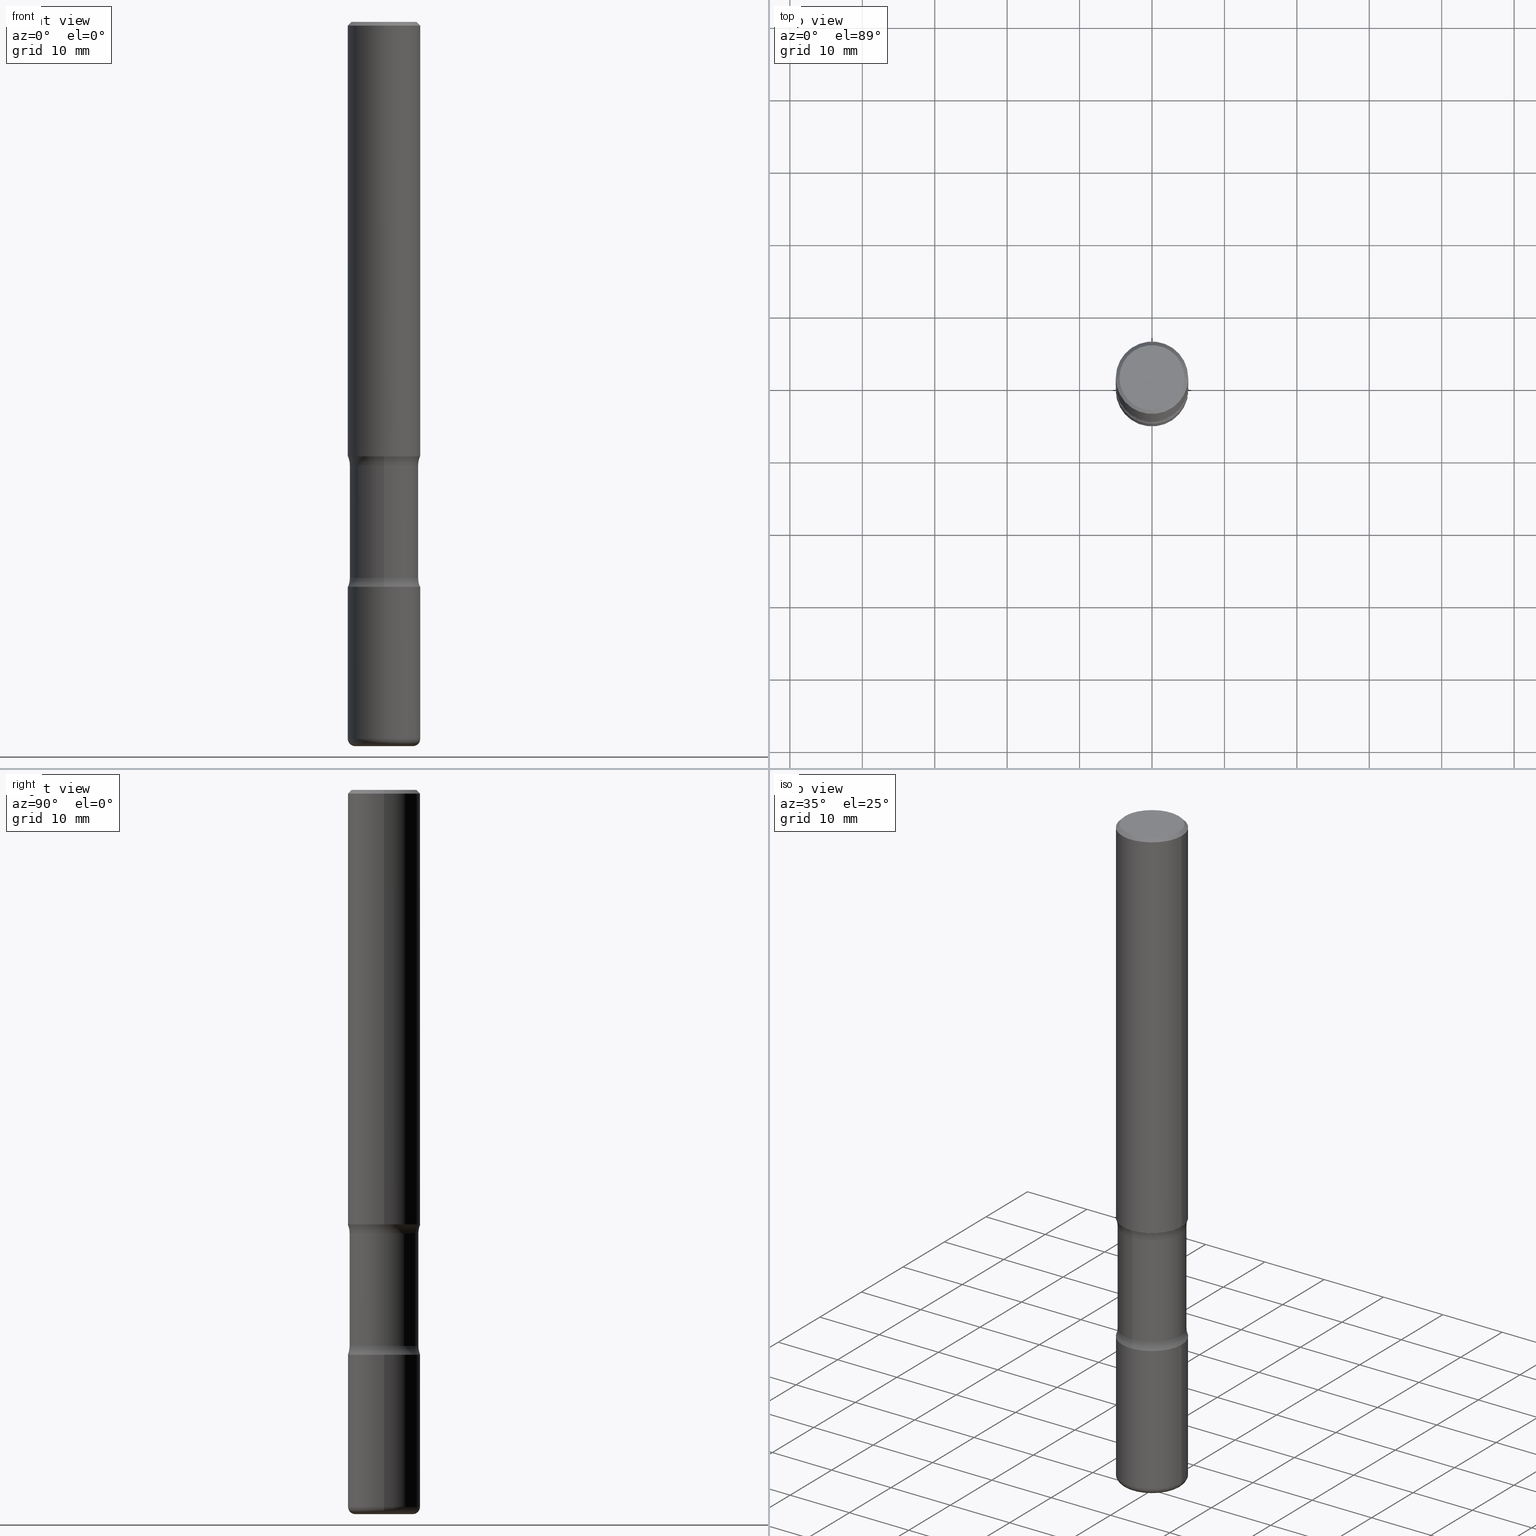
[diagram: canonical four-view strip — front | top / right | iso, engineering-drawing reading convention]
A machine part, canonical four-view strip (front | top / right | iso — engineering-drawing reading convention). The complete STEP part file that produces these views, byte-faithful:
ISO-10303-21;
HEADER;
FILE_DESCRIPTION (( 'STEP AP203' ),
    '1' );
FILE_NAME ('47672.STEP',
    '2024-03-02T06:52:57',
    ( '' ),
    ( '' ),
    'SwSTEP 2.0',
    'SolidWorks 2023',
    '' );
FILE_SCHEMA (( 'CONFIG_CONTROL_DESIGN' ));
ENDSEC;

DATA;
#1 = DIRECTION ( 'NONE',  ( -2.445468806185136597E-29, 3.491481338843145583E-15, 1.000000000000000000 ) ) ;
#2 = ORIENTED_EDGE ( 'NONE', *, *, #214, .F. ) ;
#3 = PERSON_AND_ORGANIZATION ( #423, #514 ) ;
#4 = AXIS2_PLACEMENT_3D ( 'NONE', #265, #556, #518 ) ;
#5 = EDGE_CURVE ( 'NONE', #186, #333, #536, .T. ) ;
#6 = CARTESIAN_POINT ( 'NONE',  ( -0.1968500000000002192, -1.220969429093128562E-14, -3.897600000000000176 ) ) ;
#7 = DIRECTION ( 'NONE',  ( -1.000000000000000000, 6.982962677686265922E-15, -4.883557194083112901E-29 ) ) ;
#8 = CARTESIAN_POINT ( 'NONE',  ( -0.1968500000000002470, 1.398703375343758971E-15, -9.682923725166793487E-30 ) ) ;
#9 = DIRECTION ( 'NONE',  ( 1.000000000000000000, -6.982962677686266711E-15, 0.000000000000000000 ) ) ;
#10 = APPROVAL_STATUS ( 'not_yet_approved' ) ;
#11 = LINE ( 'NONE', #540, #400 ) ;
#12 = EDGE_CURVE ( 'NONE', #544, #266, #32, .T. ) ;
#13 = AXIS2_PLACEMENT_3D ( 'NONE', #274, #535, #321 ) ;
#14 = CIRCLE ( 'NONE', #497, 0.1968500000000001915 ) ;
#15 =( LENGTH_UNIT ( ) NAMED_UNIT ( * ) SI_UNIT ( $, .METRE. ) );
#16 = AXIS2_PLACEMENT_3D ( 'NONE', #559, #272, #136 ) ;
#17 = CARTESIAN_POINT ( 'NONE',  ( 5.776686413970529753E-29, -8.247577218615279626E-15, -2.362200000000000077 ) ) ;
#18 = CARTESIAN_POINT ( 'NONE',  ( 0.000000000000000000, 0.000000000000000000, 0.000000000000000000 ) ) ;
#19 = EDGE_CURVE ( 'NONE', #243, #476, #198, .T. ) ;
#20 = PLANE ( 'NONE',  #30 ) ;
#21 = CARTESIAN_POINT ( 'NONE',  ( -0.1968500000000001915, -1.076649047952047064E-14, -3.070900000000000407 ) ) ;
#22 = LOCAL_TIME ( 1, 52, 57.00000000000000000, #397 ) ;
#23 = CIRCLE ( 'NONE', #339, 0.03939999999999978936 ) ;
#24 = AXIS2_PLACEMENT_3D ( 'NONE', #91, #95, #131 ) ;
#25 = DIRECTION ( 'NONE',  ( 6.982962677686265133E-15, 1.000000000000000000, -2.775563112689113934E-15 ) ) ;
#26 = DIRECTION ( 'NONE',  ( 2.540626945080027570E-29, -3.355209467880745729E-15, -1.000000000000000000 ) ) ;
#27 = CARTESIAN_POINT ( 'NONE',  ( 9.627810689950881427E-29, -1.374596203102546184E-14, -3.936999999999999389 ) ) ;
#28 = ORIENTED_EDGE ( 'NONE', *, *, #311, .T. ) ;
#29 = EDGE_CURVE ( 'NONE', #476, #243, #122, .T. ) ;
#30 = AXIS2_PLACEMENT_3D ( 'NONE', #66, #488, #323 ) ;
#31 = DIRECTION ( 'NONE',  ( -6.982962677686265922E-15, -1.000000000000000000, 3.355209467880745729E-15 ) ) ;
#32 = CIRCLE ( 'NONE', #88, 0.1768499999999998962 ) ;
#33 = AXIS2_PLACEMENT_3D ( 'NONE', #78, #84, #119 ) ;
#34 = EDGE_LOOP ( 'NONE', ( #310, #479, #335, #208 ) ) ;
#35 = CYLINDRICAL_SURFACE ( 'NONE', #259, 0.1870000000000000828 ) ;
#36 = EDGE_LOOP ( 'NONE', ( #80, #137, #386, #458 ) ) ;
#37 = EDGE_CURVE ( 'NONE', #266, #129, #188, .T. ) ;
#38 = DIRECTION ( 'NONE',  ( 1.000000000000000000, -6.982962677686264344E-15, 4.883557194083112340E-29 ) ) ;
#39 = ORIENTED_EDGE ( 'NONE', *, *, #165, .T. ) ;
#40 = DIRECTION ( 'NONE',  ( -1.000000000000000000, 6.982962677686266711E-15, 0.000000000000000000 ) ) ;
#41 = ORIENTED_EDGE ( 'NONE', *, *, #477, .T. ) ;
#42 = TOROIDAL_SURFACE ( 'NONE', #470, 0.3120000000000000551, 0.1250000000000000278 ) ;
#43 = CIRCLE ( 'NONE', #364, 0.1250000000000000278 ) ;
#44 = DIRECTION ( 'NONE',  ( -2.445468806185136597E-29, 3.491481338843145583E-15, 1.000000000000000000 ) ) ;
#45 = ORIENTED_EDGE ( 'NONE', *, *, #5, .F. ) ;
#46 = SECURITY_CLASSIFICATION_LEVEL ( 'unclassified' ) ;
#47 = LINE ( 'NONE', #50, #271 ) ;
#48 = ORIENTED_EDGE ( 'NONE', *, *, #508, .F. ) ;
#49 = EDGE_CURVE ( 'NONE', #466, #129, #11, .T. ) ;
#50 = CARTESIAN_POINT ( 'NONE',  ( -1.282913125583179628E-15, -0.1870000000000137108, -3.936999999999999389 ) ) ;
#51 = ORIENTED_EDGE ( 'NONE', *, *, #552, .T. ) ;
#52 = AXIS2_PLACEMENT_3D ( 'NONE', #277, #450, #403 ) ;
#53 = TOROIDAL_SURFACE ( 'NONE', #392, 0.3120000000000000551, 0.1250000000000000278 ) ;
#54 = DIRECTION ( 'NONE',  ( 6.982962677686266711E-15, 1.000000000000000000, -2.921762560068729411E-15 ) ) ;
#55 = CARTESIAN_POINT ( 'NONE',  ( 9.531459218987189074E-29, -1.360839766627504420E-14, -3.897600000000000176 ) ) ;
#56 = APPROVAL_DATE_TIME ( #228, #532 ) ;
#57 = EDGE_CURVE ( 'NONE', #129, #316, #247, .T. ) ;
#58 = DIRECTION ( 'NONE',  ( -2.445468806185136597E-29, 3.491481338843145583E-15, 1.000000000000000000 ) ) ;
#59 = PRODUCT ( '47672', '47672', '', ( #105 ) ) ;
#60 = CALENDAR_DATE ( 2024, 2, 3 ) ;
#61 = COORDINATED_UNIVERSAL_TIME_OFFSET ( 5, 0, .BEHIND. ) ;
#62 = CARTESIAN_POINT ( 'NONE',  ( 0.1968499999999999417, -1.420318657638188727E-15, -0.02000000000000006981 ) ) ;
#63 = APPROVAL_PERSON_ORGANIZATION ( #152, #532, #148 ) ;
#64 = DIRECTION ( 'NONE',  ( 1.000000000000000000, -6.982962677686272233E-15, 0.000000000000000000 ) ) ;
#65 = ADVANCED_FACE ( 'NONE', ( #283 ), #42, .F. ) ;
#66 = CARTESIAN_POINT ( 'NONE',  ( 1.234936949548815209E-15, 0.1768499999999998962, -6.153342185293597578E-16 ) ) ;
#67 = DIRECTION ( 'NONE',  ( 6.982962677686265922E-15, 1.000000000000000000, -2.775563112689112751E-15 ) ) ;
#68 = PERSON_AND_ORGANIZATION_ROLE ( 'design_owner' ) ;
#69 = DIRECTION ( 'NONE',  ( -2.445468806185136597E-29, 3.491481338843145583E-15, 1.000000000000000000 ) ) ;
#70 = AXIS2_PLACEMENT_3D ( 'NONE', #322, #196, #197 ) ;
#71 = AXIS2_PLACEMENT_3D ( 'NONE', #121, #297, #473 ) ;
#72 = PLANE ( 'NONE',  #70 ) ;
#73 = MANIFOLD_SOLID_BREP ( 'Body-Move/Copy2[1]', #155 ) ;
#74 = EDGE_CURVE ( 'NONE', #466, #421, #269, .T. ) ;
#75 = ORIENTED_EDGE ( 'NONE', *, *, #311, .F. ) ;
#76 = DIRECTION ( 'NONE',  ( -6.982962677686265133E-15, -1.000000000000000000, 0.000000000000000000 ) ) ;
#77 = VERTEX_POINT ( 'NONE', #21 ) ;
#78 = CARTESIAN_POINT ( 'NONE',  ( 9.627810689950881427E-29, -1.374596203102546184E-14, -3.936999999999999389 ) ) ;
#79 = VECTOR ( 'NONE', #482, 39.37007874015748143 ) ;
#80 = ORIENTED_EDGE ( 'NONE', *, *, #49, .F. ) ;
#81 = EDGE_CURVE ( 'NONE', #168, #476, #23, .T. ) ;
#82 = DIRECTION ( 'NONE',  ( 1.000000000000000000, -6.982962677686264344E-15, 4.883557194083112340E-29 ) ) ;
#83 = ORIENTED_EDGE ( 'NONE', *, *, #436, .T. ) ;
#84 = DIRECTION ( 'NONE',  ( -2.445468806185136597E-29, 3.491481338843145583E-15, 1.000000000000000000 ) ) ;
#85 = ORIENTED_EDGE ( 'NONE', *, *, #359, .T. ) ;
#86 = DIRECTION ( 'NONE',  ( 6.982962677686265922E-15, 1.000000000000000000, -3.355209467880746123E-15 ) ) ;
#87 = EDGE_LOOP ( 'NONE', ( #499, #83, #356, #293 ) ) ;
#88 = AXIS2_PLACEMENT_3D ( 'NONE', #224, #58, #469 ) ;
#89 = CIRCLE ( 'NONE', #162, 0.1870000000000001106 ) ;
#90 = PERSON_AND_ORGANIZATION_ROLE ( 'design_supplier' ) ;
#91 = CARTESIAN_POINT ( 'NONE',  ( 5.847933680864636237E-29, -8.485685715193371918E-15, -2.410836174808470123 ) ) ;
#92 = ORIENTED_EDGE ( 'NONE', *, *, #539, .F. ) ;
#93 = ADVANCED_FACE ( 'NONE', ( #151 ), #100, .T. ) ;
#94 = CALENDAR_DATE ( 2024, 2, 3 ) ;
#95 = DIRECTION ( 'NONE',  ( 2.540626945080028130E-29, -3.355209467880746123E-15, -1.000000000000000000 ) ) ;
#96 = ORIENTED_EDGE ( 'NONE', *, *, #57, .T. ) ;
#97 = APPROVAL ( #267, 'UNSPECIFIED' ) ;
#98 = DIRECTION ( 'NONE',  ( -2.445468806185136597E-29, 3.491481338843145583E-15, 1.000000000000000000 ) ) ;
#99 = ORIENTED_EDGE ( 'NONE', *, *, #436, .F. ) ;
#100 = CONICAL_SURFACE ( 'NONE', #553, 0.1968499999999999417, 0.7853981633974479459 ) ;
#101 = CIRCLE ( 'NONE', #409, 0.1768499999999998962 ) ;
#102 = EDGE_CURVE ( 'NONE', #313, #333, #315, .T. ) ;
#103 = CARTESIAN_POINT ( 'NONE',  ( 5.776686413970529753E-29, -8.247577218615279626E-15, -2.362200000000000077 ) ) ;
#104 = EDGE_LOOP ( 'NONE', ( #385, #547, #273, #507 ) ) ;
#105 = MECHANICAL_CONTEXT ( 'NONE', #555, 'mechanical' ) ;
#106 = CARTESIAN_POINT ( 'NONE',  ( 0.000000000000000000, 0.000000000000000000, 0.000000000000000000 ) ) ;
#107 = DIRECTION ( 'NONE',  ( -2.445468806185136877E-29, 3.491481338843145188E-15, 1.000000000000000000 ) ) ;
#108 = CYLINDRICAL_SURFACE ( 'NONE', #191, 0.1968500000000000527 ) ;
#109 = CC_DESIGN_APPROVAL ( #97, ( #330 ) ) ;
#110 = AXIS2_PLACEMENT_3D ( 'NONE', #257, #98, #438 ) ;
#111 = DIRECTION ( 'NONE',  ( -2.445468806185136597E-29, 3.491481338843145583E-15, 1.000000000000000000 ) ) ;
#112 = ADVANCED_FACE ( 'NONE', ( #407 ), #72, .F. ) ;
#113 = DIRECTION ( 'NONE',  ( 2.540626945080028130E-29, -3.355209467880746123E-15, -1.000000000000000000 ) ) ;
#114 = DIRECTION ( 'NONE',  ( 1.000000000000000000, -6.982962677686266711E-15, 0.000000000000000000 ) ) ;
#115 = ADVANCED_FACE ( 'NONE', ( #369 ), #108, .T. ) ;
#116 = PLANE ( 'NONE',  #222 ) ;
#117 = VERTEX_POINT ( 'NONE', #367 ) ;
#118 = CARTESIAN_POINT ( 'NONE',  ( 9.531459218987189074E-29, -1.360839766627504420E-14, -3.897600000000000176 ) ) ;
#119 = DIRECTION ( 'NONE',  ( 1.000000000000000000, -6.982962677686264344E-15, 0.000000000000000000 ) ) ;
#120 = ORIENTED_EDGE ( 'NONE', *, *, #318, .F. ) ;
#121 = CARTESIAN_POINT ( 'NONE',  ( 5.709247840935720689E-29, -8.344153093566332027E-15, -2.362200000000000077 ) ) ;
#122 = CIRCLE ( 'NONE', #350, 0.1968500000000003303 ) ;
#123 = VECTOR ( 'NONE', #149, 39.37007874015748143 ) ;
#124 = VERTEX_POINT ( 'NONE', #453 ) ;
#125 = CC_DESIGN_PERSON_AND_ORGANIZATION_ASSIGNMENT ( #138, #305, ( #256 ) ) ;
#126 = DIRECTION ( 'NONE',  ( -1.000000000000000000, 6.982962677686265922E-15, -4.883557194083112901E-29 ) ) ;
#127 = ORIENTED_EDGE ( 'NONE', *, *, #74, .F. ) ;
#128 = CARTESIAN_POINT ( 'NONE',  ( 1.305814020727405957E-15, 0.1869999999999895079, -3.022263825191530806 ) ) ;
#129 = VERTEX_POINT ( 'NONE', #278 ) ;
#130 = ADVANCED_FACE ( 'NONE', ( #241 ), #534, .F. ) ;
#131 = DIRECTION ( 'NONE',  ( 6.982962677686265922E-15, 1.000000000000000000, -3.355209467880746123E-15 ) ) ;
#132 = LOCAL_TIME ( 1, 52, 57.00000000000000000, #216 ) ;
#133 = ORIENTED_EDGE ( 'NONE', *, *, #37, .T. ) ;
#134 = AXIS2_PLACEMENT_3D ( 'NONE', #427, #394, #54 ) ;
#135 = CC_DESIGN_APPROVAL ( #419, ( #256 ) ) ;
#136 = DIRECTION ( 'NONE',  ( 6.982962677686266711E-15, 1.000000000000000000, -2.921762560068729017E-15 ) ) ;
#137 = ORIENTED_EDGE ( 'NONE', *, *, #74, .T. ) ;
#138 = PERSON_AND_ORGANIZATION ( #423, #514 ) ;
#139 = CARTESIAN_POINT ( 'NONE',  ( 5.847933680864636237E-29, -8.485685715193371918E-15, -2.410836174808470123 ) ) ;
#140 = DIRECTION ( 'NONE',  ( -2.445468806185136597E-29, 3.491481338843145583E-15, 1.000000000000000000 ) ) ;
#141 = EDGE_CURVE ( 'NONE', #77, #181, #14, .T. ) ;
#142 = DATE_TIME_ROLE ( 'classification_date' ) ;
#143 = DIRECTION ( 'NONE',  ( 1.000000000000000000, -6.982962677686266711E-15, 4.875932113059880811E-29 ) ) ;
#144 = EDGE_LOOP ( 'NONE', ( #120, #2 ) ) ;
#145 = PERSON_AND_ORGANIZATION_ROLE ( 'classification_officer' ) ;
#146 = AXIS2_PLACEMENT_3D ( 'NONE', #184, #357, #262 ) ;
#147 = APPLICATION_CONTEXT ( 'configuration controlled 3d designs of mechanical parts and assemblies' ) ;
#148 = APPROVAL_ROLE ( '' ) ;
#149 = DIRECTION ( 'NONE',  ( 0.7071067811865472397, -7.319954787623254468E-15, -0.7071067811865477948 ) ) ;
#150 = ADVANCED_BREP_SHAPE_REPRESENTATION ( '47672', ( #73, #264, #443, #13 ), #161 ) ;
#151 = FACE_OUTER_BOUND ( 'NONE', #474, .T. ) ;
#152 = PERSON_AND_ORGANIZATION ( #423, #514 ) ;
#153 = ADVANCED_FACE ( 'NONE', ( #158 ), #327, .T. ) ;
#154 = DIRECTION ( 'NONE',  ( 2.445468806185136597E-29, -3.491481338843145583E-15, -1.000000000000000000 ) ) ;
#155 = CLOSED_SHELL ( 'NONE', ( #405, #246, #231, #275, #153, #112 ) ) ;
#156 = CIRCLE ( 'NONE', #331, 0.1968500000000001915 ) ;
#157 = APPLICATION_PROTOCOL_DEFINITION ( 'international standard', 'config_control_design', 1994, #555 ) ;
#158 = FACE_OUTER_BOUND ( 'NONE', #304, .T. ) ;
#159 = LINE ( 'NONE', #62, #123 ) ;
#160 = DIRECTION ( 'NONE',  ( -1.000000000000000000, 6.982962677686265922E-15, -4.876176775795935793E-29 ) ) ;
#161 =( GEOMETRIC_REPRESENTATION_CONTEXT ( 3 ) GLOBAL_UNCERTAINTY_ASSIGNED_CONTEXT ( ( #183 ) ) GLOBAL_UNIT_ASSIGNED_CONTEXT ( ( #285, #406, #368 ) ) REPRESENTATION_CONTEXT ( 'NONE', 'WORKASPACE' ) );
#162 = AXIS2_PLACEMENT_3D ( 'NONE', #548, #336, #373 ) ;
#163 = DIRECTION ( 'NONE',  ( -2.445468806185136597E-29, 3.491481338843145583E-15, 1.000000000000000000 ) ) ;
#164 = ORIENTED_EDGE ( 'NONE', *, *, #141, .T. ) ;
#165 = EDGE_CURVE ( 'NONE', #421, #466, #170, .T. ) ;
#166 = ORIENTED_EDGE ( 'NONE', *, *, #338, .F. ) ;
#167 = CARTESIAN_POINT ( 'NONE',  ( 7.390851908567657271E-29, -1.055217774671693035E-14, -3.022263825191530362 ) ) ;
#168 = VERTEX_POINT ( 'NONE', #455 ) ;
#169 = DIRECTION ( 'NONE',  ( -2.445468806185136597E-29, 3.491481338843145583E-15, 1.000000000000000000 ) ) ;
#170 = CIRCLE ( 'NONE', #240, 0.1968500000000001082 ) ;
#171 = ORIENTED_EDGE ( 'NONE', *, *, #49, .T. ) ;
#172 = DIMENSIONAL_EXPONENTS ( 1.000000000000000000, 0.000000000000000000, 0.000000000000000000, 0.000000000000000000, 0.000000000000000000, 0.000000000000000000, 0.000000000000000000 ) ;
#173 = CYLINDRICAL_SURFACE ( 'NONE', #134, 0.1870000000000000828 ) ;
#174 = ORIENTED_EDGE ( 'NONE', *, *, #351, .F. ) ;
#175 = EDGE_CURVE ( 'NONE', #124, #117, #317, .T. ) ;
#176 = DIRECTION ( 'NONE',  ( 2.540626945080028130E-29, -3.355209467880746123E-15, -1.000000000000000000 ) ) ;
#177 = EDGE_LOOP ( 'NONE', ( #342, #354, #210, #75 ) ) ;
#178 = DATE_TIME_ROLE ( 'creation_date' ) ;
#179 = CARTESIAN_POINT ( 'NONE',  ( -1.316701078222244837E-15, -0.1870000000000086315, -2.410836174808469679 ) ) ;
#180 = CLOSED_SHELL ( 'NONE', ( #324, #467, #93, #545, #395, #115 ) ) ;
#181 = VERTEX_POINT ( 'NONE', #200 ) ;
#182 = AXIS2_PLACEMENT_3D ( 'NONE', #294, #461, #417 ) ;
#183 = UNCERTAINTY_MEASURE_WITH_UNIT (LENGTH_MEASURE( 1.000000000000000082E-05 ), #285, 'distance_accuracy_value', 'NONE');
#184 = CARTESIAN_POINT ( 'NONE',  ( 0.1574500000000003119, -1.470786513987674896E-14, -3.897600000000000176 ) ) ;
#185 = EDGE_CURVE ( 'NONE', #544, #316, #159, .T. ) ;
#186 = VERTEX_POINT ( 'NONE', #320 ) ;
#187 = CARTESIAN_POINT ( 'NONE',  ( 0.1574500000000003119, -1.484542950462716817E-14, -3.936999999999999389 ) ) ;
#188 = LINE ( 'NONE', #527, #489 ) ;
#189 = PERSON_AND_ORGANIZATION ( #423, #514 ) ;
#190 = ORIENTED_EDGE ( 'NONE', *, *, #501, .F. ) ;
#191 = AXIS2_PLACEMENT_3D ( 'NONE', #18, #487, #538 ) ;
#192 = AXIS2_PLACEMENT_3D ( 'NONE', #118, #169, #38 ) ;
#193 = DATE_AND_TIME ( #399, #414 ) ;
#194 = PLANE ( 'NONE',  #426 ) ;
#195 = ADVANCED_FACE ( 'NONE', ( #401 ), #194, .F. ) ;
#196 = DIRECTION ( 'NONE',  ( 2.438088387897960049E-29, -3.491481338843145188E-15, -1.000000000000000000 ) ) ;
#197 = DIRECTION ( 'NONE',  ( -1.000000000000000000, 6.982962677686265922E-15, -4.876176775795935793E-29 ) ) ;
#198 = CIRCLE ( 'NONE', #239, 0.1968500000000003303 ) ;
#199 = CIRCLE ( 'NONE', #205, 0.1870000000000000551 ) ;
#200 = CARTESIAN_POINT ( 'NONE',  ( 0.1968500000000001915, -1.209658624655596058E-14, -3.070900000000000407 ) ) ;
#201 = EDGE_CURVE ( 'NONE', #186, #424, #341, .T. ) ;
#202 = CARTESIAN_POINT ( 'NONE',  ( 0.1968499999999999417, -1.420318657638188727E-15, -0.02000000000000006981 ) ) ;
#203 = DIRECTION ( 'NONE',  ( 2.438088387897960049E-29, -3.491481338843145188E-15, -1.000000000000000000 ) ) ;
#204 = ORIENTED_EDGE ( 'NONE', *, *, #449, .F. ) ;
#205 = AXIS2_PLACEMENT_3D ( 'NONE', #374, #329, #289 ) ;
#206 = FACE_OUTER_BOUND ( 'NONE', #34, .T. ) ;
#207 = CARTESIAN_POINT ( 'NONE',  ( 9.710227154047748282E-29, -1.362793696358492956E-14, -3.937000000000000277 ) ) ;
#208 = ORIENTED_EDGE ( 'NONE', *, *, #29, .F. ) ;
#209 = FACE_OUTER_BOUND ( 'NONE', #308, .T. ) ;
#210 = ORIENTED_EDGE ( 'NONE', *, *, #236, .T. ) ;
#211 = DIRECTION ( 'NONE',  ( 1.000000000000000000, -6.860497997771530774E-15, 4.842467728730022328E-29 ) ) ;
#212 = VECTOR ( 'NONE', #541, 39.37007874015748143 ) ;
#213 = EDGE_LOOP ( 'NONE', ( #260, #164 ) ) ;
#214 = EDGE_CURVE ( 'NONE', #168, #520, #483, .T. ) ;
#215 = EDGE_LOOP ( 'NONE', ( #190, #412, #28, #51 ) ) ;
#216 = COORDINATED_UNIVERSAL_TIME_OFFSET ( 5, 0, .BEHIND. ) ;
#217 = FACE_OUTER_BOUND ( 'NONE', #104, .T. ) ;
#218 = ORIENTED_EDGE ( 'NONE', *, *, #81, .T. ) ;
#219 = EDGE_CURVE ( 'NONE', #181, #77, #402, .T. ) ;
#220 = CARTESIAN_POINT ( 'NONE',  ( -1.043851414335219820E-46, 1.490343170380447200E-32, 4.268512490100411279E-18 ) ) ;
#221 = CARTESIAN_POINT ( 'NONE',  ( 2.178684355438174110E-15, 0.3119999999999916729, -2.410836174808471011 ) ) ;
#222 = AXIS2_PLACEMENT_3D ( 'NONE', #334, #203, #160 ) ;
#223 = DIRECTION ( 'NONE',  ( 2.445468806185136597E-29, -3.491481338843145583E-15, -1.000000000000000000 ) ) ;
#224 = CARTESIAN_POINT ( 'NONE',  ( -1.043851414335219820E-46, 1.490343170380447200E-32, 4.268512490100411279E-18 ) ) ;
#225 = APPROVAL_DATE_TIME ( #348, #97 ) ;
#226 = LENGTH_MEASURE_WITH_UNIT ( LENGTH_MEASURE( 0.02539999999999999897 ), #15 );
#227 = ORIENTED_EDGE ( 'NONE', *, *, #351, .T. ) ;
#228 = DATE_AND_TIME ( #441, #22 ) ;
#229 = DIRECTION ( 'NONE',  ( 6.982962677686265922E-15, 1.000000000000000000, -3.355209467880745729E-15 ) ) ;
#230 = APPROVAL_PERSON_ORGANIZATION ( #481, #97, #388 ) ;
#231 = ADVANCED_FACE ( 'NONE', ( #496 ), #116, .T. ) ;
#232 = CIRCLE ( 'NONE', #110, 0.1968499999999999417 ) ;
#233 = DIRECTION ( 'NONE',  ( 2.540626945080028130E-29, -3.355209467880746123E-15, -1.000000000000000000 ) ) ;
#234 = APPROVAL_STATUS ( 'not_yet_approved' ) ;
#235 = CARTESIAN_POINT ( 'NONE',  ( 7.390851908567657271E-29, -1.055217774671693035E-14, -3.022263825191530362 ) ) ;
#236 = EDGE_CURVE ( 'NONE', #549, #424, #199, .T. ) ;
#237 = DIRECTION ( 'NONE',  ( 1.000000000000000000, -6.982962677686265133E-15, 0.000000000000000000 ) ) ;
#238 = CIRCLE ( 'NONE', #52, 0.1870000000000000551 ) ;
#239 = AXIS2_PLACEMENT_3D ( 'NONE', #524, #140, #440 ) ;
#240 = AXIS2_PLACEMENT_3D ( 'NONE', #408, #69, #237 ) ;
#241 = FACE_OUTER_BOUND ( 'NONE', #418, .T. ) ;
#242 = DIRECTION ( 'NONE',  ( -2.540626945080027570E-29, 3.355209467880745729E-15, 1.000000000000000000 ) ) ;
#243 = VERTEX_POINT ( 'NONE', #463 ) ;
#244 = DIRECTION ( 'NONE',  ( 1.000000000000000000, -6.982962677686264344E-15, 0.000000000000000000 ) ) ;
#245 = ORIENTED_EDGE ( 'NONE', *, *, #552, .F. ) ;
#246 = ADVANCED_FACE ( 'NONE', ( #457 ), #376, .T. ) ;
#247 = CIRCLE ( 'NONE', #437, 0.1968499999999999417 ) ;
#248 = VECTOR ( 'NONE', #377, 39.37007874015748143 ) ;
#249 = CYLINDRICAL_SURFACE ( 'NONE', #182, 0.1968500000000000527 ) ;
#250 = ORIENTED_EDGE ( 'NONE', *, *, #185, .F. ) ;
#251 = CARTESIAN_POINT ( 'NONE',  ( 1.374596203102600378E-15, 0.1968499999999919758, -2.362200000000000966 ) ) ;
#252 = EDGE_LOOP ( 'NONE', ( #510, #560, #557, #382 ) ) ;
#253 = CC_DESIGN_PERSON_AND_ORGANIZATION_ASSIGNMENT ( #319, #444, ( #299 ) ) ;
#254 = FACE_OUTER_BOUND ( 'NONE', #252, .T. ) ;
#255 = ORIENTED_EDGE ( 'NONE', *, *, #454, .F. ) ;
#256 = PRODUCT_DEFINITION_FORMATION_WITH_SPECIFIED_SOURCE ( 'ANY', '', #59, .NOT_KNOWN. ) ;
#257 = CARTESIAN_POINT ( 'NONE',  ( 4.890937612370289799E-31, -6.982962677686315028E-17, -0.02000000000000006981 ) ) ;
#258 = AXIS2_PLACEMENT_3D ( 'NONE', #17, #451, #276 ) ;
#259 = AXIS2_PLACEMENT_3D ( 'NONE', #207, #422, #380 ) ;
#260 = ORIENTED_EDGE ( 'NONE', *, *, #219, .T. ) ;
#261 = APPROVAL_DATE_TIME ( #345, #419 ) ;
#262 = DIRECTION ( 'NONE',  ( 1.000000000000000000, -6.982962677686266711E-15, 0.000000000000000000 ) ) ;
#263 = EDGE_LOOP ( 'NONE', ( #204, #375, #301, #45 ) ) ;
#264 = MANIFOLD_SOLID_BREP ( 'Body-Move/Copy2[2]', #180 ) ;
#265 = CARTESIAN_POINT ( 'NONE',  ( -2.140475375304660122E-15, -0.3120000000000086038, -2.410836174808469234 ) ) ;
#266 = VERTEX_POINT ( 'NONE', #542 ) ;
#267 = APPROVAL_STATUS ( 'not_yet_approved' ) ;
#268 = FACE_OUTER_BOUND ( 'NONE', #435, .T. ) ;
#269 = CIRCLE ( 'NONE', #258, 0.1968500000000001082 ) ;
#270 = ORIENTED_EDGE ( 'NONE', *, *, #5, .T. ) ;
#271 = VECTOR ( 'NONE', #509, 39.37007874015748143 ) ;
#272 = DIRECTION ( 'NONE',  ( 2.540626945080028130E-29, -3.355209467880746123E-15, -1.000000000000000000 ) ) ;
#273 = ORIENTED_EDGE ( 'NONE', *, *, #508, .T. ) ;
#274 = CARTESIAN_POINT ( 'NONE',  ( 0.000000000000000000, 0.000000000000000000, 0.000000000000000000 ) ) ;
#275 = ADVANCED_FACE ( 'NONE', ( #206 ), #447, .T. ) ;
#276 = DIRECTION ( 'NONE',  ( 1.000000000000000000, -6.982962677686265133E-15, 0.000000000000000000 ) ) ;
#277 = CARTESIAN_POINT ( 'NONE',  ( 7.386223780689915972E-29, -1.055880548925453445E-14, -3.022263825191530362 ) ) ;
#278 = CARTESIAN_POINT ( 'NONE',  ( -0.1968499999999999417, 1.304766576325678113E-15, -0.02000000000000006981 ) ) ;
#279 = APPROVAL_PERSON_ORGANIZATION ( #3, #419, #433 ) ;
#280 = CLOSED_SHELL ( 'NONE', ( #519, #65, #379, #486, #130, #195, #284, #332 ) ) ;
#281 = AXIS2_PLACEMENT_3D ( 'NONE', #465, #411, #381 ) ;
#282 = APPLICATION_PROTOCOL_DEFINITION ( 'international standard', 'config_control_design', 1994, #147 ) ;
#283 = FACE_OUTER_BOUND ( 'NONE', #177, .T. ) ;
#284 = ADVANCED_FACE ( 'NONE', ( #550 ), #53, .F. ) ;
#285 =( CONVERSION_BASED_UNIT ( 'INCH', #226 ) LENGTH_UNIT ( ) NAMED_UNIT ( #172 ) );
#286 = DIRECTION ( 'NONE',  ( -2.445468806185136597E-29, 3.491481338843145583E-15, 1.000000000000000000 ) ) ;
#287 = DIRECTION ( 'NONE',  ( -1.000000000000000000, 7.105427357601014480E-15, 0.000000000000000000 ) ) ;
#288 = AXIS2_PLACEMENT_3D ( 'NONE', #139, #312, #86 ) ;
#289 = DIRECTION ( 'NONE',  ( 6.982962677686266711E-15, 1.000000000000000000, -2.921762560068729806E-15 ) ) ;
#290 = ORIENTED_EDGE ( 'NONE', *, *, #175, .T. ) ;
#291 = LINE ( 'NONE', #459, #248 ) ;
#292 = EDGE_CURVE ( 'NONE', #243, #181, #291, .T. ) ;
#293 = ORIENTED_EDGE ( 'NONE', *, *, #292, .F. ) ;
#294 = CARTESIAN_POINT ( 'NONE',  ( 0.000000000000000000, 0.000000000000000000, 0.000000000000000000 ) ) ;
#295 = EDGE_LOOP ( 'NONE', ( #290, #41 ) ) ;
#296 = CIRCLE ( 'NONE', #146, 0.03939999999999978936 ) ;
#297 = DIRECTION ( 'NONE',  ( 2.540626945080028130E-29, -3.355209467880746123E-15, -1.000000000000000000 ) ) ;
#298 = ORIENTED_EDGE ( 'NONE', *, *, #318, .T. ) ;
#299 = PRODUCT_DEFINITION ( 'UNKNOWN', '', #256, #521 ) ;
#300 = CARTESIAN_POINT ( 'NONE',  ( -1.350489030861270998E-15, -0.1968500000000086292, -2.362199999999999189 ) ) ;
#301 = ORIENTED_EDGE ( 'NONE', *, *, #102, .T. ) ;
#302 = CC_DESIGN_DATE_AND_TIME_ASSIGNMENT ( #511, #142, ( #330 ) ) ;
#303 = CARTESIAN_POINT ( 'NONE',  ( 7.509790156913936305E-29, -1.072199004345341739E-14, -3.070900000000000407 ) ) ;
#304 = EDGE_LOOP ( 'NONE', ( #99, #428, #513, #460 ) ) ;
#305 = PERSON_AND_ORGANIZATION_ROLE ( 'creator' ) ;
#306 = FACE_OUTER_BOUND ( 'NONE', #347, .T. ) ;
#307 = AXIS2_PLACEMENT_3D ( 'NONE', #420, #126, #76 ) ;
#308 = EDGE_LOOP ( 'NONE', ( #39, #171, #48, #92 ) ) ;
#309 = FACE_OUTER_BOUND ( 'NONE', #87, .T. ) ;
#310 = ORIENTED_EDGE ( 'NONE', *, *, #81, .F. ) ;
#311 = EDGE_CURVE ( 'NONE', #124, #424, #554, .T. ) ;
#312 = DIRECTION ( 'NONE',  ( 2.540626945080028130E-29, -3.355209467880746123E-15, -1.000000000000000000 ) ) ;
#313 = VERTEX_POINT ( 'NONE', #300 ) ;
#314 = FACE_OUTER_BOUND ( 'NONE', #263, .T. ) ;
#315 = CIRCLE ( 'NONE', #425, 0.1968500000000002748 ) ;
#316 = VERTEX_POINT ( 'NONE', #202 ) ;
#317 = CIRCLE ( 'NONE', #383, 0.1968500000000001915 ) ;
#318 = EDGE_CURVE ( 'NONE', #520, #168, #516, .T. ) ;
#319 = PERSON_AND_ORGANIZATION ( #423, #514 ) ;
#320 = CARTESIAN_POINT ( 'NONE',  ( 1.305814020727390771E-15, 0.1869999999999916174, -2.410836174808470567 ) ) ;
#321 = DIRECTION ( 'NONE',  ( 1.000000000000000000, 0.000000000000000000, 0.000000000000000000 ) ) ;
#322 = CARTESIAN_POINT ( 'NONE',  ( 7.509790156913936305E-29, -1.072199004345341739E-14, -3.070900000000000407 ) ) ;
#323 = DIRECTION ( 'NONE',  ( -1.000000000000000000, 6.982962677686265922E-15, -4.876176775795935793E-29 ) ) ;
#324 = ADVANCED_FACE ( 'NONE', ( #209 ), #249, .T. ) ;
#325 = AXIS2_PLACEMENT_3D ( 'NONE', #103, #352, #468 ) ;
#326 = CARTESIAN_POINT ( 'NONE',  ( -1.316701078222226890E-15, -0.1870000000000106022, -3.022263825191529918 ) ) ;
#327 = CYLINDRICAL_SURFACE ( 'NONE', #462, 0.1968500000000002470 ) ;
#328 = CARTESIAN_POINT ( 'NONE',  ( 5.709247840935720689E-29, -8.344153093566332027E-15, -2.362200000000000077 ) ) ;
#329 = DIRECTION ( 'NONE',  ( 2.540626945080028130E-29, -3.355209467880746123E-15, -1.000000000000000000 ) ) ;
#330 = SECURITY_CLASSIFICATION ( '', '', #46 ) ;
#331 = AXIS2_PLACEMENT_3D ( 'NONE', #303, #176, #523 ) ;
#332 = ADVANCED_FACE ( 'NONE', ( #254 ), #35, .T. ) ;
#333 = VERTEX_POINT ( 'NONE', #251 ) ;
#334 = CARTESIAN_POINT ( 'NONE',  ( 1.916782435662395522E-28, -8.411947649235427361E-17, -3.937000000000000277 ) ) ;
#335 = ORIENTED_EDGE ( 'NONE', *, *, #387, .T. ) ;
#336 = DIRECTION ( 'NONE',  ( 2.540626945080028130E-29, -3.355209467880746123E-15, -1.000000000000000000 ) ) ;
#337 = ORIENTED_EDGE ( 'NONE', *, *, #102, .F. ) ;
#338 = EDGE_CURVE ( 'NONE', #186, #393, #89, .T. ) ;
#339 = AXIS2_PLACEMENT_3D ( 'NONE', #491, #366, #287 ) ;
#340 = AXIS2_PLACEMENT_3D ( 'NONE', #389, #1, #526 ) ;
#341 = LINE ( 'NONE', #413, #212 ) ;
#342 = ORIENTED_EDGE ( 'NONE', *, *, #477, .F. ) ;
#343 = LINE ( 'NONE', #452, #543 ) ;
#344 = ORIENTED_EDGE ( 'NONE', *, *, #416, .F. ) ;
#345 = DATE_AND_TIME ( #60, #495 ) ;
#346 = CARTESIAN_POINT ( 'NONE',  ( -2.140475375304643950E-15, -0.3120000000000106577, -3.022263825191529474 ) ) ;
#347 = EDGE_LOOP ( 'NONE', ( #484, #85, #245, #432 ) ) ;
#348 = DATE_AND_TIME ( #528, #517 ) ;
#349 = CC_DESIGN_APPROVAL ( #532, ( #299 ) ) ;
#350 = AXIS2_PLACEMENT_3D ( 'NONE', #55, #396, #9 ) ;
#351 = EDGE_CURVE ( 'NONE', #333, #313, #537, .T. ) ;
#352 = DIRECTION ( 'NONE',  ( -2.438088387897960049E-29, 3.491481338843145188E-15, 1.000000000000000000 ) ) ;
#353 = CIRCLE ( 'NONE', #16, 0.1870000000000001106 ) ;
#354 = ORIENTED_EDGE ( 'NONE', *, *, #501, .T. ) ;
#355 = PLANE ( 'NONE',  #325 ) ;
#356 = ORIENTED_EDGE ( 'NONE', *, *, #219, .F. ) ;
#357 = DIRECTION ( 'NONE',  ( -6.982962677686266711E-15, -1.000000000000000000, 3.491481338843145583E-15 ) ) ;
#358 = DIRECTION ( 'NONE',  ( -6.982962677686264344E-15, -1.000000000000000000, 0.000000000000000000 ) ) ;
#359 = EDGE_CURVE ( 'NONE', #393, #549, #47, .T. ) ;
#360 = COORDINATED_UNIVERSAL_TIME_OFFSET ( 5, 0, .BEHIND. ) ;
#361 = FACE_OUTER_BOUND ( 'NONE', #415, .T. ) ;
#362 = AXIS2_PLACEMENT_3D ( 'NONE', #445, #26, #229 ) ;
#363 = DIRECTION ( 'NONE',  ( -2.445468806185136877E-29, 3.491481338843145188E-15, 1.000000000000000000 ) ) ;
#364 = AXIS2_PLACEMENT_3D ( 'NONE', #346, #211, #478 ) ;
#365 = CARTESIAN_POINT ( 'NONE',  ( 0.1768499999999998962, -1.316798864272041549E-15, 4.268512490109333727E-18 ) ) ;
#366 = DIRECTION ( 'NONE',  ( 7.105427357601001859E-15, 1.000000000000000000, -3.491481338843145583E-15 ) ) ;
#367 = CARTESIAN_POINT ( 'NONE',  ( -1.350489030861251670E-15, -0.1968500000000109051, -3.070899999999999963 ) ) ;
#368 =( NAMED_UNIT ( * ) SI_UNIT ( $, .STERADIAN. ) SOLID_ANGLE_UNIT ( ) );
#369 = FACE_OUTER_BOUND ( 'NONE', #36, .T. ) ;
#370 = AXIS2_PLACEMENT_3D ( 'NONE', #221, #7, #358 ) ;
#371 = CIRCLE ( 'NONE', #4, 0.1250000000000001110 ) ;
#372 = DIRECTION ( 'NONE',  ( -1.000000000000000000, 6.982962677686266711E-15, 0.000000000000000000 ) ) ;
#373 = DIRECTION ( 'NONE',  ( 6.982962677686266711E-15, 1.000000000000000000, -2.921762560068729017E-15 ) ) ;
#374 = CARTESIAN_POINT ( 'NONE',  ( 7.386223780689915972E-29, -1.055880548925453445E-14, -3.022263825191530362 ) ) ;
#375 = ORIENTED_EDGE ( 'NONE', *, *, #416, .T. ) ;
#376 = TOROIDAL_SURFACE ( 'NONE', #192, 0.1574500000000003119, 0.03939999999999978936 ) ;
#377 = DIRECTION ( 'NONE',  ( -2.445468806185136877E-29, 3.491481338843145188E-15, 1.000000000000000000 ) ) ;
#378 = ORIENTED_EDGE ( 'NONE', *, *, #19, .F. ) ;
#379 = ADVANCED_FACE ( 'NONE', ( #314 ), #505, .F. ) ;
#380 = DIRECTION ( 'NONE',  ( 6.982962677686266711E-15, 1.000000000000000000, -2.921762560068729411E-15 ) ) ;
#381 = DIRECTION ( 'NONE',  ( 1.000000000000000000, -6.982962677686272233E-15, 0.000000000000000000 ) ) ;
#382 = ORIENTED_EDGE ( 'NONE', *, *, #236, .F. ) ;
#383 = AXIS2_PLACEMENT_3D ( 'NONE', #485, #233, #25 ) ;
#384 = CYLINDRICAL_SURFACE ( 'NONE', #340, 0.1968500000000002470 ) ;
#385 = ORIENTED_EDGE ( 'NONE', *, *, #12, .F. ) ;
#386 = ORIENTED_EDGE ( 'NONE', *, *, #539, .T. ) ;
#387 = EDGE_CURVE ( 'NONE', #520, #243, #296, .T. ) ;
#388 = APPROVAL_ROLE ( '' ) ;
#389 = CARTESIAN_POINT ( 'NONE',  ( 0.000000000000000000, 0.000000000000000000, 0.000000000000000000 ) ) ;
#390 = EDGE_LOOP ( 'NONE', ( #442, #127 ) ) ;
#391 = CARTESIAN_POINT ( 'NONE',  ( 4.890937612370289799E-31, -6.982962677686315028E-17, -0.02000000000000006981 ) ) ;
#392 = AXIS2_PLACEMENT_3D ( 'NONE', #167, #498, #506 ) ;
#393 = VERTEX_POINT ( 'NONE', #179 ) ;
#394 = DIRECTION ( 'NONE',  ( 2.540626945080028130E-29, -3.355209467880746123E-15, -1.000000000000000000 ) ) ;
#395 = ADVANCED_FACE ( 'NONE', ( #512 ), #355, .F. ) ;
#396 = DIRECTION ( 'NONE',  ( -2.445468806185136597E-29, 3.491481338843145583E-15, 1.000000000000000000 ) ) ;
#397 = COORDINATED_UNIVERSAL_TIME_OFFSET ( 5, 0, .BEHIND. ) ;
#398 = DIRECTION ( 'NONE',  ( -0.7071067811865472397, 2.468850131082253905E-15, -0.7071067811865477948 ) ) ;
#399 = CALENDAR_DATE ( 2024, 2, 3 ) ;
#400 = VECTOR ( 'NONE', #363, 39.37007874015748143 ) ;
#401 = FACE_OUTER_BOUND ( 'NONE', #295, .T. ) ;
#402 = CIRCLE ( 'NONE', #281, 0.1968500000000001915 ) ;
#403 = DIRECTION ( 'NONE',  ( 6.982962677686266711E-15, 1.000000000000000000, -2.921762560068729806E-15 ) ) ;
#404 = CARTESIAN_POINT ( 'NONE',  ( 4.890937612370289799E-31, -6.982962677686315028E-17, -0.02000000000000006981 ) ) ;
#405 = ADVANCED_FACE ( 'NONE', ( #309 ), #384, .T. ) ;
#406 =( NAMED_UNIT ( * ) PLANE_ANGLE_UNIT ( ) SI_UNIT ( $, .RADIAN. ) );
#407 = FACE_OUTER_BOUND ( 'NONE', #213, .T. ) ;
#408 = CARTESIAN_POINT ( 'NONE',  ( 5.776686413970529753E-29, -8.247577218615279626E-15, -2.362200000000000077 ) ) ;
#409 = AXIS2_PLACEMENT_3D ( 'NONE', #220, #44, #143 ) ;
#410 = DIRECTION ( 'NONE',  ( 6.982962677686265922E-15, 1.000000000000000000, -3.355209467880746123E-15 ) ) ;
#411 = DIRECTION ( 'NONE',  ( -2.445468806185136597E-29, 3.491481338843145583E-15, 1.000000000000000000 ) ) ;
#412 = ORIENTED_EDGE ( 'NONE', *, *, #175, .F. ) ;
#413 = CARTESIAN_POINT ( 'NONE',  ( 1.305814020727429425E-15, 0.1869999999999864548, -3.937000000000000721 ) ) ;
#414 = LOCAL_TIME ( 1, 52, 57.00000000000000000, #61 ) ;
#415 = EDGE_LOOP ( 'NONE', ( #464, #551 ) ) ;
#416 = EDGE_CURVE ( 'NONE', #393, #313, #371, .T. ) ;
#417 = DIRECTION ( 'NONE',  ( 1.000000000000000000, -6.982962677686266711E-15, 4.876176775795935793E-29 ) ) ;
#418 = EDGE_LOOP ( 'NONE', ( #174, #337 ) ) ;
#419 = APPROVAL ( #10, 'UNSPECIFIED' ) ;
#420 = CARTESIAN_POINT ( 'NONE',  ( 2.178684355438189098E-15, 0.3119999999999894524, -3.022263825191531694 ) ) ;
#421 = VERTEX_POINT ( 'NONE', #475 ) ;
#422 = DIRECTION ( 'NONE',  ( 2.540626945080028130E-29, -3.355209467880746123E-15, -1.000000000000000000 ) ) ;
#423 = PERSON ( 'UNSPECIFIED', 'UNSPECIFIED', 'UNSPECIFIED', ('UNSPECIFIED'), ('UNSPECIFIED'), ('UNSPECIFIED') ) ;
#424 = VERTEX_POINT ( 'NONE', #128 ) ;
#425 = AXIS2_PLACEMENT_3D ( 'NONE', #328, #448, #67 ) ;
#426 = AXIS2_PLACEMENT_3D ( 'NONE', #500, #242, #31 ) ;
#427 = CARTESIAN_POINT ( 'NONE',  ( 9.710227154047748282E-29, -1.362793696358492956E-14, -3.937000000000000277 ) ) ;
#428 = ORIENTED_EDGE ( 'NONE', *, *, #29, .T. ) ;
#429 = CC_DESIGN_DATE_AND_TIME_ASSIGNMENT ( #193, #178, ( #299 ) ) ;
#430 = PERSON_AND_ORGANIZATION ( #423, #514 ) ;
#431 = CARTESIAN_POINT ( 'NONE',  ( -0.1968500000000001360, -2.760000047352310125E-15, -2.362200000000000077 ) ) ;
#432 = ORIENTED_EDGE ( 'NONE', *, *, #201, .F. ) ;
#433 = APPROVAL_ROLE ( '' ) ;
#434 = LINE ( 'NONE', #8, #79 ) ;
#435 = EDGE_LOOP ( 'NONE', ( #344, #166, #270, #227 ) ) ;
#436 = EDGE_CURVE ( 'NONE', #476, #77, #434, .T. ) ;
#437 = AXIS2_PLACEMENT_3D ( 'NONE', #404, #492, #114 ) ;
#438 = DIRECTION ( 'NONE',  ( 1.000000000000000000, -6.982962677686266711E-15, 0.000000000000000000 ) ) ;
#439 = AXIS2_PLACEMENT_3D ( 'NONE', #546, #163, #82 ) ;
#440 = DIRECTION ( 'NONE',  ( 1.000000000000000000, -6.982962677686266711E-15, 0.000000000000000000 ) ) ;
#441 = CALENDAR_DATE ( 2024, 2, 3 ) ;
#442 = ORIENTED_EDGE ( 'NONE', *, *, #165, .F. ) ;
#443 = MANIFOLD_SOLID_BREP ( 'Body-Move/Copy2[4]', #280 ) ;
#444 = PERSON_AND_ORGANIZATION_ROLE ( 'creator' ) ;
#445 = CARTESIAN_POINT ( 'NONE',  ( 5.776686413970529753E-29, -8.247577218615279626E-15, -2.362200000000000077 ) ) ;
#446 = CC_DESIGN_SECURITY_CLASSIFICATION ( #330, ( #256 ) ) ;
#447 = TOROIDAL_SURFACE ( 'NONE', #439, 0.1574500000000003119, 0.03939999999999978936 ) ;
#448 = DIRECTION ( 'NONE',  ( 2.540626945080028130E-29, -3.355209467880746123E-15, -1.000000000000000000 ) ) ;
#449 = EDGE_CURVE ( 'NONE', #393, #186, #353, .T. ) ;
#450 = DIRECTION ( 'NONE',  ( 2.540626945080028130E-29, -3.355209467880746123E-15, -1.000000000000000000 ) ) ;
#451 = DIRECTION ( 'NONE',  ( -2.445468806185136597E-29, 3.491481338843145583E-15, 1.000000000000000000 ) ) ;
#452 = CARTESIAN_POINT ( 'NONE',  ( 0.1968500000000000527, -1.374596203102542003E-15, 9.598753983154302260E-30 ) ) ;
#453 = CARTESIAN_POINT ( 'NONE',  ( 1.374596203102617931E-15, 0.1968499999999894223, -3.070900000000000851 ) ) ;
#454 = EDGE_CURVE ( 'NONE', #266, #544, #101, .T. ) ;
#455 = CARTESIAN_POINT ( 'NONE',  ( -0.1574500000000003119, -1.241845339225123375E-14, -3.936999999999999389 ) ) ;
#456 = CONICAL_SURFACE ( 'NONE', #472, 0.1968499999999999417, 0.7853981633974479459 ) ;
#457 = FACE_OUTER_BOUND ( 'NONE', #502, .T. ) ;
#458 = ORIENTED_EDGE ( 'NONE', *, *, #57, .F. ) ;
#459 = CARTESIAN_POINT ( 'NONE',  ( 0.1968500000000002470, -1.374596203102543383E-15, 9.598753983154312069E-30 ) ) ;
#460 = ORIENTED_EDGE ( 'NONE', *, *, #141, .F. ) ;
#461 = DIRECTION ( 'NONE',  ( -2.445468806185136597E-29, 3.491481338843145583E-15, 1.000000000000000000 ) ) ;
#462 = AXIS2_PLACEMENT_3D ( 'NONE', #106, #286, #494 ) ;
#463 = CARTESIAN_POINT ( 'NONE',  ( 0.1968500000000002192, -1.498299386937758423E-14, -3.897600000000000176 ) ) ;
#464 = ORIENTED_EDGE ( 'NONE', *, *, #454, .T. ) ;
#465 = CARTESIAN_POINT ( 'NONE',  ( 7.509790156913936305E-29, -1.072199004345341739E-14, -3.070900000000000407 ) ) ;
#466 = VERTEX_POINT ( 'NONE', #431 ) ;
#467 = ADVANCED_FACE ( 'NONE', ( #217 ), #456, .T. ) ;
#468 = DIRECTION ( 'NONE',  ( 1.000000000000000000, -6.982962677686265922E-15, 4.876176775795935793E-29 ) ) ;
#469 = DIRECTION ( 'NONE',  ( 1.000000000000000000, -6.982962677686266711E-15, 4.875932113059880811E-29 ) ) ;
#470 = AXIS2_PLACEMENT_3D ( 'NONE', #235, #113, #410 ) ;
#471 = COORDINATED_UNIVERSAL_TIME_OFFSET ( 5, 0, .BEHIND. ) ;
#472 = AXIS2_PLACEMENT_3D ( 'NONE', #391, #223, #40 ) ;
#473 = DIRECTION ( 'NONE',  ( 6.982962677686265922E-15, 1.000000000000000000, -2.775563112689112751E-15 ) ) ;
#474 = EDGE_LOOP ( 'NONE', ( #250, #255, #133, #96 ) ) ;
#475 = CARTESIAN_POINT ( 'NONE',  ( 0.1968500000000001082, -9.622173421717821235E-15, -2.362200000000000077 ) ) ;
#476 = VERTEX_POINT ( 'NONE', #6 ) ;
#477 = EDGE_CURVE ( 'NONE', #117, #124, #156, .T. ) ;
#478 = DIRECTION ( 'NONE',  ( 6.860497997771529985E-15, 1.000000000000000000, 0.000000000000000000 ) ) ;
#479 = ORIENTED_EDGE ( 'NONE', *, *, #214, .T. ) ;
#480 = CC_DESIGN_PERSON_AND_ORGANIZATION_ASSIGNMENT ( #522, #145, ( #330 ) ) ;
#481 = PERSON_AND_ORGANIZATION ( #423, #514 ) ;
#482 = DIRECTION ( 'NONE',  ( -2.445468806185136877E-29, 3.491481338843145188E-15, 1.000000000000000000 ) ) ;
#483 = CIRCLE ( 'NONE', #490, 0.1574500000000003119 ) ;
#484 = ORIENTED_EDGE ( 'NONE', *, *, #338, .T. ) ;
#485 = CARTESIAN_POINT ( 'NONE',  ( 7.509790156913936305E-29, -1.072199004345341739E-14, -3.070900000000000407 ) ) ;
#486 = ADVANCED_FACE ( 'NONE', ( #268 ), #529, .F. ) ;
#487 = DIRECTION ( 'NONE',  ( -2.445468806185136597E-29, 3.491481338843145583E-15, 1.000000000000000000 ) ) ;
#488 = DIRECTION ( 'NONE',  ( 2.438088387897960049E-29, -3.491481338843145188E-15, -1.000000000000000000 ) ) ;
#489 = VECTOR ( 'NONE', #398, 39.37007874015748143 ) ;
#490 = AXIS2_PLACEMENT_3D ( 'NONE', #27, #503, #244 ) ;
#491 = CARTESIAN_POINT ( 'NONE',  ( -0.1574500000000003119, -1.248964812882076424E-14, -3.897600000000000176 ) ) ;
#492 = DIRECTION ( 'NONE',  ( -2.445468806185136597E-29, 3.491481338843145583E-15, 1.000000000000000000 ) ) ;
#493 = CC_DESIGN_PERSON_AND_ORGANIZATION_ASSIGNMENT ( #189, #68, ( #59 ) ) ;
#494 = DIRECTION ( 'NONE',  ( 1.000000000000000000, -6.982962677686266711E-15, 4.876176775795935793E-29 ) ) ;
#495 = LOCAL_TIME ( 1, 52, 57.00000000000000000, #471 ) ;
#496 = FACE_OUTER_BOUND ( 'NONE', #144, .T. ) ;
#497 = AXIS2_PLACEMENT_3D ( 'NONE', #530, #111, #64 ) ;
#498 = DIRECTION ( 'NONE',  ( 2.540626945080028130E-29, -3.355209467880746123E-15, -1.000000000000000000 ) ) ;
#499 = ORIENTED_EDGE ( 'NONE', *, *, #19, .T. ) ;
#500 = CARTESIAN_POINT ( 'NONE',  ( 7.509790156913936305E-29, -1.072199004345341739E-14, -3.070900000000000407 ) ) ;
#501 = EDGE_CURVE ( 'NONE', #117, #549, #43, .T. ) ;
#502 = EDGE_LOOP ( 'NONE', ( #298, #218, #378, #504 ) ) ;
#503 = DIRECTION ( 'NONE',  ( -2.445468806185136597E-29, 3.491481338843145583E-15, 1.000000000000000000 ) ) ;
#504 = ORIENTED_EDGE ( 'NONE', *, *, #387, .F. ) ;
#505 = TOROIDAL_SURFACE ( 'NONE', #24, 0.3120000000000001106, 0.1250000000000000833 ) ;
#506 = DIRECTION ( 'NONE',  ( 6.982962677686265922E-15, 1.000000000000000000, -3.355209467880746123E-15 ) ) ;
#507 = ORIENTED_EDGE ( 'NONE', *, *, #37, .F. ) ;
#508 = EDGE_CURVE ( 'NONE', #316, #129, #232, .T. ) ;
#509 = DIRECTION ( 'NONE',  ( 2.540626945080028130E-29, -3.355209467880745729E-15, -1.000000000000000000 ) ) ;
#510 = ORIENTED_EDGE ( 'NONE', *, *, #359, .F. ) ;
#511 = DATE_AND_TIME ( #94, #132 ) ;
#512 = FACE_OUTER_BOUND ( 'NONE', #390, .T. ) ;
#513 = ORIENTED_EDGE ( 'NONE', *, *, #292, .T. ) ;
#514 = ORGANIZATION ( 'UNSPECIFIED', 'UNSPECIFIED', '' ) ;
#515 = SHAPE_DEFINITION_REPRESENTATION ( #531, #150 ) ;
#516 = CIRCLE ( 'NONE', #33, 0.1574500000000003119 ) ;
#517 = LOCAL_TIME ( 1, 52, 57.00000000000000000, #360 ) ;
#518 = DIRECTION ( 'NONE',  ( 6.860497997771529196E-15, 1.000000000000000000, 0.000000000000000000 ) ) ;
#519 = ADVANCED_FACE ( 'NONE', ( #306 ), #173, .T. ) ;
#520 = VERTEX_POINT ( 'NONE', #187 ) ;
#521 = DESIGN_CONTEXT ( 'detailed design', #147, 'design' ) ;
#522 = PERSON_AND_ORGANIZATION ( #423, #514 ) ;
#523 = DIRECTION ( 'NONE',  ( 6.982962677686265133E-15, 1.000000000000000000, -2.775563112689113934E-15 ) ) ;
#524 = CARTESIAN_POINT ( 'NONE',  ( 9.531459218987189074E-29, -1.360839766627504420E-14, -3.897600000000000176 ) ) ;
#525 = PRODUCT_RELATED_PRODUCT_CATEGORY ( 'detail', '', ( #59 ) ) ;
#526 = DIRECTION ( 'NONE',  ( 1.000000000000000000, -6.982962677686266711E-15, 4.876176775795935793E-29 ) ) ;
#527 = CARTESIAN_POINT ( 'NONE',  ( -0.1968499999999999417, 1.304766576325678113E-15, -0.02000000000000006981 ) ) ;
#528 = CALENDAR_DATE ( 2024, 2, 3 ) ;
#529 = TOROIDAL_SURFACE ( 'NONE', #288, 0.3120000000000001106, 0.1250000000000000833 ) ;
#530 = CARTESIAN_POINT ( 'NONE',  ( 7.509790156913936305E-29, -1.072199004345341739E-14, -3.070900000000000407 ) ) ;
#531 = PRODUCT_DEFINITION_SHAPE ( 'NONE', 'NONE',  #299 ) ;
#532 = APPROVAL ( #234, 'UNSPECIFIED' ) ;
#533 = CARTESIAN_POINT ( 'NONE',  ( 4.890937612370289799E-31, -6.982962677686315028E-17, -0.02000000000000006981 ) ) ;
#534 = PLANE ( 'NONE',  #362 ) ;
#535 = DIRECTION ( 'NONE',  ( 0.000000000000000000, 0.000000000000000000, 1.000000000000000000 ) ) ;
#536 = CIRCLE ( 'NONE', #370, 0.1250000000000001110 ) ;
#537 = CIRCLE ( 'NONE', #71, 0.1968500000000002748 ) ;
#538 = DIRECTION ( 'NONE',  ( 1.000000000000000000, -6.982962677686266711E-15, 4.876176775795935793E-29 ) ) ;
#539 = EDGE_CURVE ( 'NONE', #421, #316, #343, .T. ) ;
#540 = CARTESIAN_POINT ( 'NONE',  ( -0.1968500000000000527, 1.398703375343757590E-15, -9.682923725166785079E-30 ) ) ;
#541 = DIRECTION ( 'NONE',  ( 2.540626945080028130E-29, -3.355209467880745729E-15, -1.000000000000000000 ) ) ;
#542 = CARTESIAN_POINT ( 'NONE',  ( -0.1768499999999998962, 1.269851762937246858E-15, 4.268512490091652920E-18 ) ) ;
#543 = VECTOR ( 'NONE', #107, 39.37007874015748143 ) ;
#544 = VERTEX_POINT ( 'NONE', #365 ) ;
#545 = ADVANCED_FACE ( 'NONE', ( #361 ), #20, .F. ) ;
#546 = CARTESIAN_POINT ( 'NONE',  ( 9.531459218987189074E-29, -1.360839766627504420E-14, -3.897600000000000176 ) ) ;
#547 = ORIENTED_EDGE ( 'NONE', *, *, #185, .T. ) ;
#548 = CARTESIAN_POINT ( 'NONE',  ( 5.832814217159742143E-29, -8.507337647765213396E-15, -2.410836174808470123 ) ) ;
#549 = VERTEX_POINT ( 'NONE', #326 ) ;
#550 = FACE_OUTER_BOUND ( 'NONE', #215, .T. ) ;
#551 = ORIENTED_EDGE ( 'NONE', *, *, #12, .T. ) ;
#552 = EDGE_CURVE ( 'NONE', #424, #549, #238, .T. ) ;
#553 = AXIS2_PLACEMENT_3D ( 'NONE', #533, #154, #372 ) ;
#554 = CIRCLE ( 'NONE', #307, 0.1250000000000000278 ) ;
#555 = APPLICATION_CONTEXT ( 'configuration controlled 3d designs of mechanical parts and assemblies' ) ;
#556 = DIRECTION ( 'NONE',  ( 1.000000000000000000, -6.860497997771530774E-15, 4.842467728730022328E-29 ) ) ;
#557 = ORIENTED_EDGE ( 'NONE', *, *, #201, .T. ) ;
#558 = CC_DESIGN_PERSON_AND_ORGANIZATION_ASSIGNMENT ( #430, #90, ( #256 ) ) ;
#559 = CARTESIAN_POINT ( 'NONE',  ( 5.832814217159742143E-29, -8.507337647765213396E-15, -2.410836174808470123 ) ) ;
#560 = ORIENTED_EDGE ( 'NONE', *, *, #449, .T. ) ;
ENDSEC;
END-ISO-10303-21;
